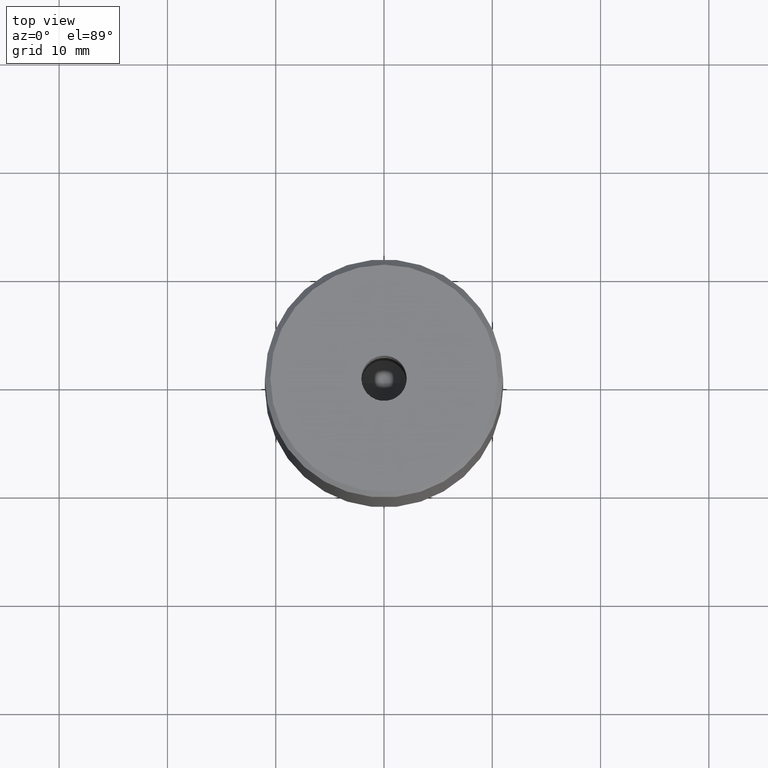
[diagram: clean part render]
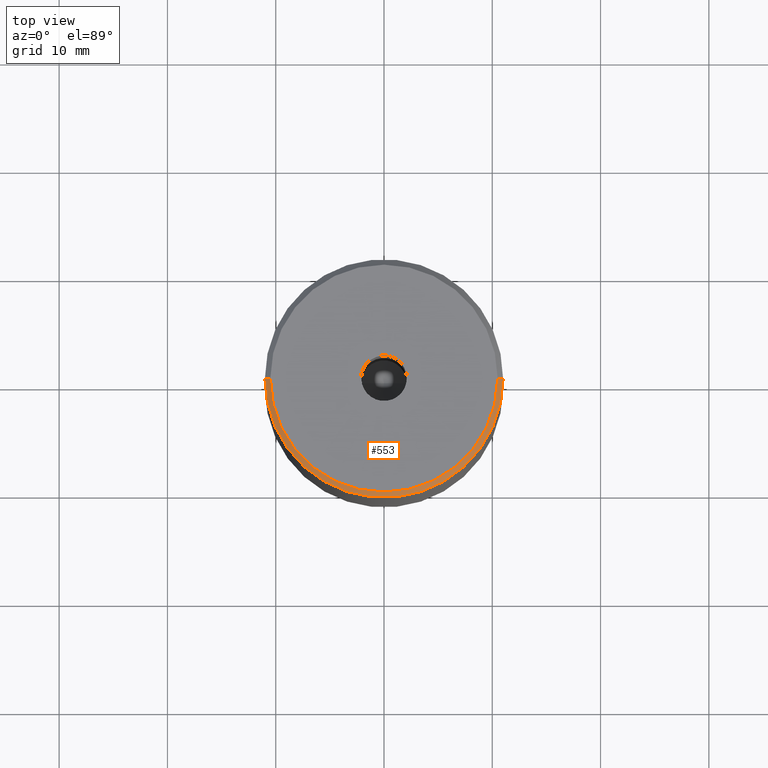
[diagram: same view with one face highlighted and labeled with its STEP entity id]
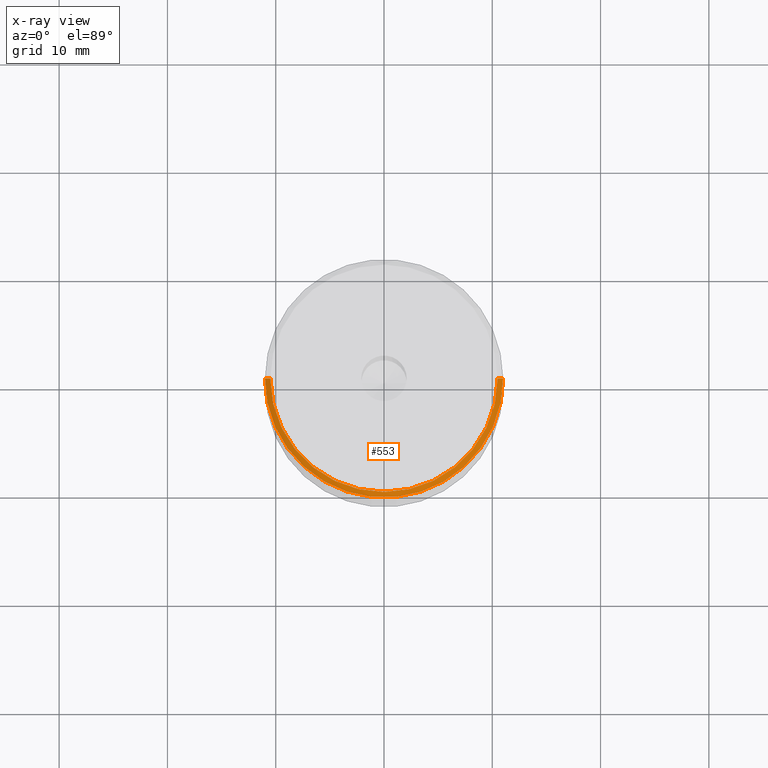
[diagram: x-ray of the same camera — body ghosted, the highlighted face saturated]
A machine part, top view. The second image highlights one B-rep face of the part: STEP entity #553.
The next image is the same camera in x-ray: the body ghosted, the highlighted face saturated — about 0% of this face is hidden behind the body in this view.
In plain terms, the highlighted conical surface has half-angle 45 deg.
Its self-contained STEP definition (entity closure, byte-faithful):
#8 = EDGE_CURVE ( 'NONE', #83, #362, #99, .T. ) ;
#23 = VERTEX_POINT ( 'NONE', #275 ) ;
#42 = DIRECTION ( 'NONE',  ( -0.7071067811865451302, 0.000000000000000000, -0.7071067811865500152 ) ) ;
#55 = CARTESIAN_POINT ( 'NONE',  ( -10.50000000000000888, 0.000000000000000000, 0.000000000000000000 ) ) ;
#59 = DIRECTION ( 'NONE',  ( -1.000000000000000000, 0.000000000000000000, 0.000000000000000000 ) ) ;
#75 = CIRCLE ( 'NONE', #277, 10.50000000000000888 ) ;
#83 = VERTEX_POINT ( 'NONE', #258 ) ;
#91 = VERTEX_POINT ( 'NONE', #55 ) ;
#99 = CIRCLE ( 'NONE', #493, 11.00000000000000000 ) ;
#108 = DIRECTION ( 'NONE',  ( 0.7071067811865451302, 8.659560562354904508E-17, -0.7071067811865500152 ) ) ;
#123 = DIRECTION ( 'NONE',  ( 0.000000000000000000, 0.000000000000000000, -1.000000000000000000 ) ) ;
#127 = AXIS2_PLACEMENT_3D ( 'NONE', #426, #516, #59 ) ;
#135 = CARTESIAN_POINT ( 'NONE',  ( -11.00000000000000000, 1.347111479062088405E-15, -0.4999999999999935052 ) ) ;
#154 = LINE ( 'NONE', #341, #161 ) ;
#158 = DIRECTION ( 'NONE',  ( 1.000000000000000000, 0.000000000000000000, 0.000000000000000000 ) ) ;
#161 = VECTOR ( 'NONE', #108, 1000.000000000000114 ) ;
#189 = EDGE_CURVE ( 'NONE', #23, #83, #154, .T. ) ;
#200 = CARTESIAN_POINT ( 'NONE',  ( -10.50000000000000888, 0.000000000000000000, 0.000000000000000000 ) ) ;
#203 = EDGE_CURVE ( 'NONE', #91, #362, #296, .T. ) ;
#228 = EDGE_LOOP ( 'NONE', ( #570, #537, #494, #359 ) ) ;
#258 = CARTESIAN_POINT ( 'NONE',  ( 11.00000000000000000, 0.000000000000000000, -0.4999999999999935052 ) ) ;
#275 = CARTESIAN_POINT ( 'NONE',  ( 10.50000000000000888, 1.316495309083405209E-15, 0.000000000000000000 ) ) ;
#277 = AXIS2_PLACEMENT_3D ( 'NONE', #428, #558, #158 ) ;
#296 = LINE ( 'NONE', #200, #358 ) ;
#302 = CONICAL_SURFACE ( 'NONE', #127, 10.50000000000000888, 0.7853981633974447263 ) ;
#311 = DIRECTION ( 'NONE',  ( 1.000000000000000000, 0.000000000000000000, 0.000000000000000000 ) ) ;
#340 = FACE_OUTER_BOUND ( 'NONE', #228, .T. ) ;
#341 = CARTESIAN_POINT ( 'NONE',  ( 10.50000000000000888, 1.285879139104722014E-15, 0.000000000000000000 ) ) ;
#358 = VECTOR ( 'NONE', #42, 1000.000000000000114 ) ;
#359 = ORIENTED_EDGE ( 'NONE', *, *, #8, .F. ) ;
#362 = VERTEX_POINT ( 'NONE', #135 ) ;
#426 = CARTESIAN_POINT ( 'NONE',  ( 0.000000000000000000, 0.000000000000000000, 0.000000000000000000 ) ) ;
#428 = CARTESIAN_POINT ( 'NONE',  ( 0.000000000000000000, 0.000000000000000000, 0.000000000000000000 ) ) ;
#490 = CARTESIAN_POINT ( 'NONE',  ( 0.000000000000000000, 0.000000000000000000, -0.4999999999999935052 ) ) ;
#493 = AXIS2_PLACEMENT_3D ( 'NONE', #490, #123, #311 ) ;
#494 = ORIENTED_EDGE ( 'NONE', *, *, #203, .T. ) ;
#516 = DIRECTION ( 'NONE',  ( 0.000000000000000000, 0.000000000000000000, -1.000000000000000000 ) ) ;
#537 = ORIENTED_EDGE ( 'NONE', *, *, #565, .F. ) ;
#553 = ADVANCED_FACE ( 'NONE', ( #340 ), #302, .T. ) ;
#558 = DIRECTION ( 'NONE',  ( -0.000000000000000000, -0.000000000000000000, 1.000000000000000000 ) ) ;
#565 = EDGE_CURVE ( 'NONE', #91, #23, #75, .T. ) ;
#570 = ORIENTED_EDGE ( 'NONE', *, *, #189, .F. ) ;